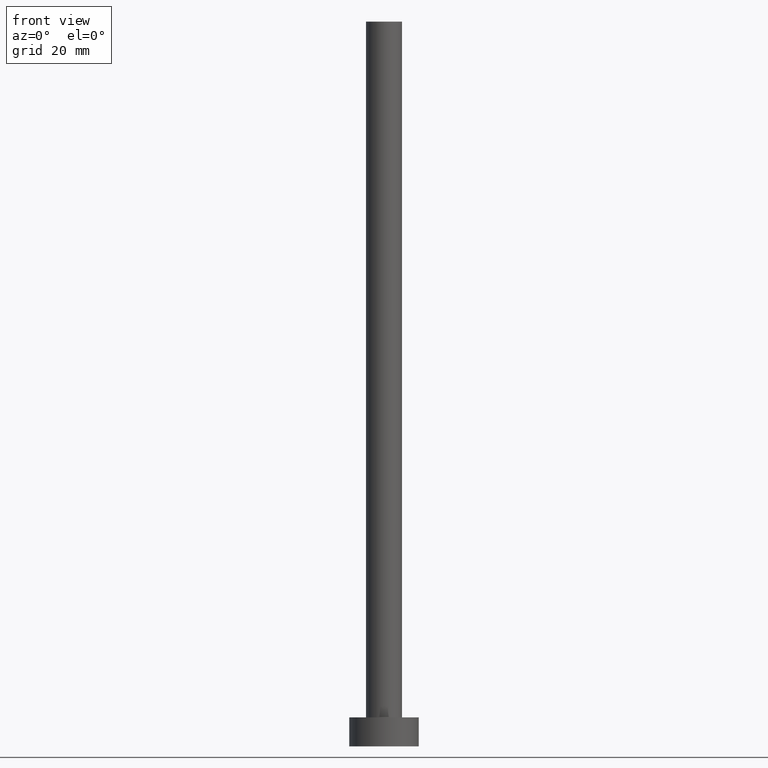
[diagram: clean part render]
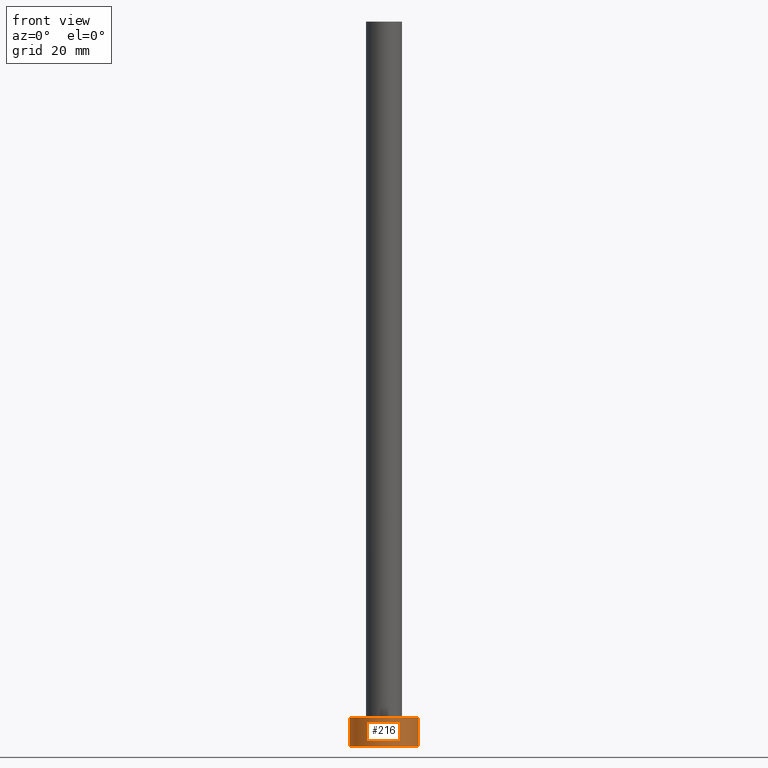
[diagram: same view with one face highlighted and labeled with its STEP entity id]
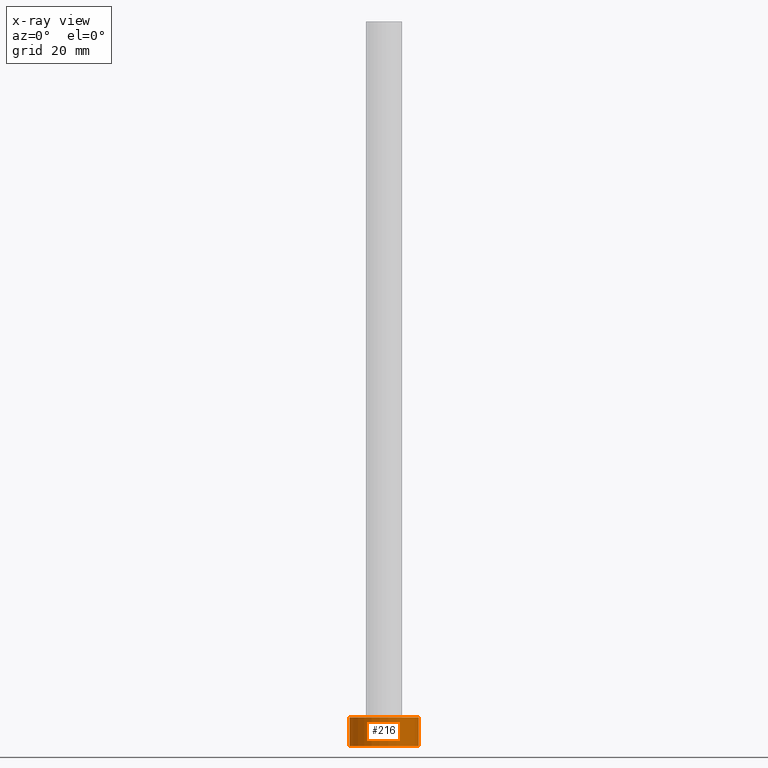
[diagram: x-ray of the same camera — body ghosted, the highlighted face saturated]
A machine part, front view. The second image highlights one B-rep face of the part: STEP entity #216.
The next image is the same camera in x-ray: the body ghosted, the highlighted face saturated — about 0% of this face is hidden behind the body in this view.
In plain terms, the highlighted cylindrical surface (edge-blend (fillet) strip) has radius 6 mm, axis along (-0, -0, -1).
Its self-contained STEP definition (entity closure, byte-faithful):
#1 = CARTESIAN_POINT ( 'NONE',  ( 6.000000000000000888, 7.347880794884120722E-16, 5.000000000000000000 ) ) ;
#11 = AXIS2_PLACEMENT_3D ( 'NONE', #147, #217, #44 ) ;
#15 = DIRECTION ( 'NONE',  ( -0.000000000000000000, -0.000000000000000000, -1.000000000000000000 ) ) ;
#20 = ORIENTED_EDGE ( 'NONE', *, *, #143, .T. ) ;
#25 = ORIENTED_EDGE ( 'NONE', *, *, #38, .F. ) ;
#26 = DIRECTION ( 'NONE',  ( 0.000000000000000000, 0.000000000000000000, 1.000000000000000000 ) ) ;
#28 = VERTEX_POINT ( 'NONE', #125 ) ;
#35 = VECTOR ( 'NONE', #15, 1000.000000000000000 ) ;
#38 = EDGE_CURVE ( 'NONE', #138, #28, #136, .T. ) ;
#44 = DIRECTION ( 'NONE',  ( 1.000000000000000000, 0.000000000000000000, 0.000000000000000000 ) ) ;
#45 = DIRECTION ( 'NONE',  ( -0.000000000000000000, -0.000000000000000000, -1.000000000000000000 ) ) ;
#52 = CYLINDRICAL_SURFACE ( 'NONE', #127, 6.000000000000000888 ) ;
#83 = CARTESIAN_POINT ( 'NONE',  ( -6.000000000000000888, 0.000000000000000000, 5.000000000000000000 ) ) ;
#88 = EDGE_CURVE ( 'NONE', #162, #183, #90, .T. ) ;
#90 = CIRCLE ( 'NONE', #11, 6.000000000000000888 ) ;
#91 = EDGE_CURVE ( 'NONE', #28, #183, #144, .T. ) ;
#125 = CARTESIAN_POINT ( 'NONE',  ( 6.000000000000000888, 7.347880794884120722E-16, 5.000000000000000000 ) ) ;
#127 = AXIS2_PLACEMENT_3D ( 'NONE', #173, #245, #168 ) ;
#134 = FACE_OUTER_BOUND ( 'NONE', #254, .T. ) ;
#136 = CIRCLE ( 'NONE', #193, 6.000000000000000888 ) ;
#138 = VERTEX_POINT ( 'NONE', #83 ) ;
#143 = EDGE_CURVE ( 'NONE', #138, #162, #146, .T. ) ;
#144 = LINE ( 'NONE', #1, #189 ) ;
#146 = LINE ( 'NONE', #184, #35 ) ;
#147 = CARTESIAN_POINT ( 'NONE',  ( 0.000000000000000000, 0.000000000000000000, 0.000000000000000000 ) ) ;
#160 = ORIENTED_EDGE ( 'NONE', *, *, #91, .F. ) ;
#161 = ORIENTED_EDGE ( 'NONE', *, *, #88, .T. ) ;
#162 = VERTEX_POINT ( 'NONE', #209 ) ;
#168 = DIRECTION ( 'NONE',  ( -1.000000000000000000, 0.000000000000000000, 0.000000000000000000 ) ) ;
#173 = CARTESIAN_POINT ( 'NONE',  ( 0.000000000000000000, 0.000000000000000000, 5.000000000000000000 ) ) ;
#181 = DIRECTION ( 'NONE',  ( 1.000000000000000000, 0.000000000000000000, 0.000000000000000000 ) ) ;
#183 = VERTEX_POINT ( 'NONE', #192 ) ;
#184 = CARTESIAN_POINT ( 'NONE',  ( -6.000000000000000888, 0.000000000000000000, 5.000000000000000000 ) ) ;
#189 = VECTOR ( 'NONE', #45, 1000.000000000000000 ) ;
#192 = CARTESIAN_POINT ( 'NONE',  ( 6.000000000000000888, 7.347880794884120722E-16, 0.000000000000000000 ) ) ;
#193 = AXIS2_PLACEMENT_3D ( 'NONE', #233, #26, #181 ) ;
#209 = CARTESIAN_POINT ( 'NONE',  ( -6.000000000000000888, 0.000000000000000000, 0.000000000000000000 ) ) ;
#216 = ADVANCED_FACE ( 'NONE', ( #134 ), #52, .T. ) ;
#217 = DIRECTION ( 'NONE',  ( 0.000000000000000000, 0.000000000000000000, 1.000000000000000000 ) ) ;
#233 = CARTESIAN_POINT ( 'NONE',  ( 0.000000000000000000, 0.000000000000000000, 5.000000000000000000 ) ) ;
#245 = DIRECTION ( 'NONE',  ( -0.000000000000000000, -0.000000000000000000, -1.000000000000000000 ) ) ;
#254 = EDGE_LOOP ( 'NONE', ( #160, #25, #20, #161 ) ) ;